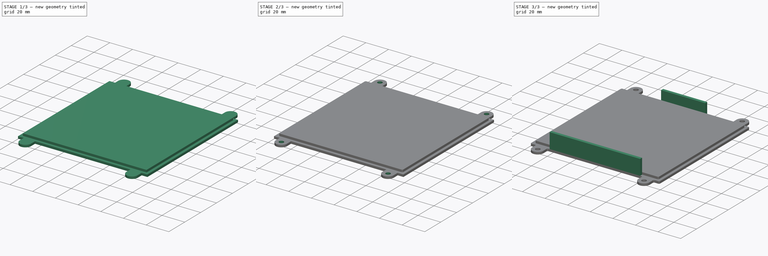
[diagram: build sequence overview — one tinted view per stage of 3, left to right]
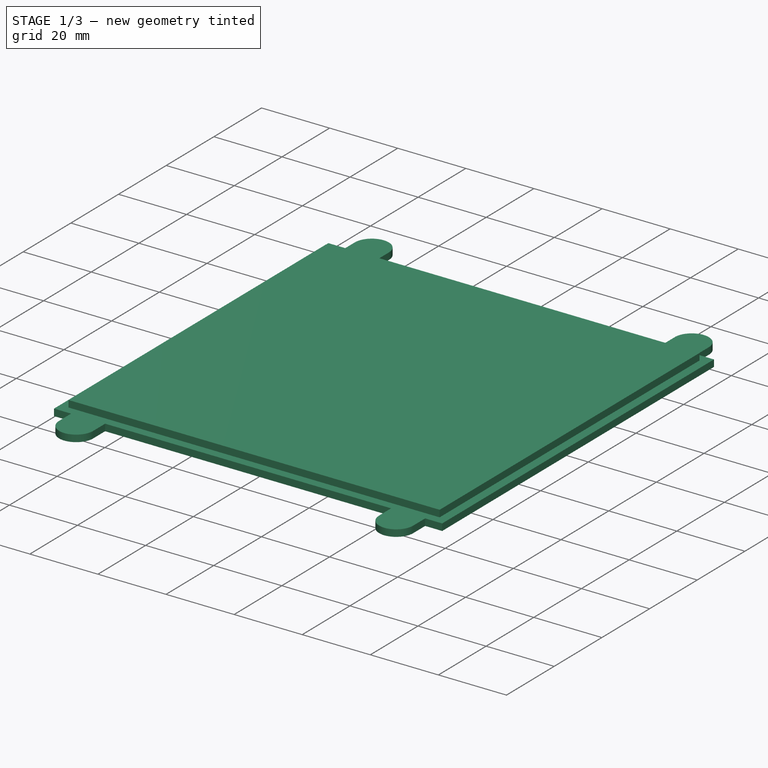
[diagram: stage 1 of 3 — iso view after this stage's code; geometry added in this stage tinted green]
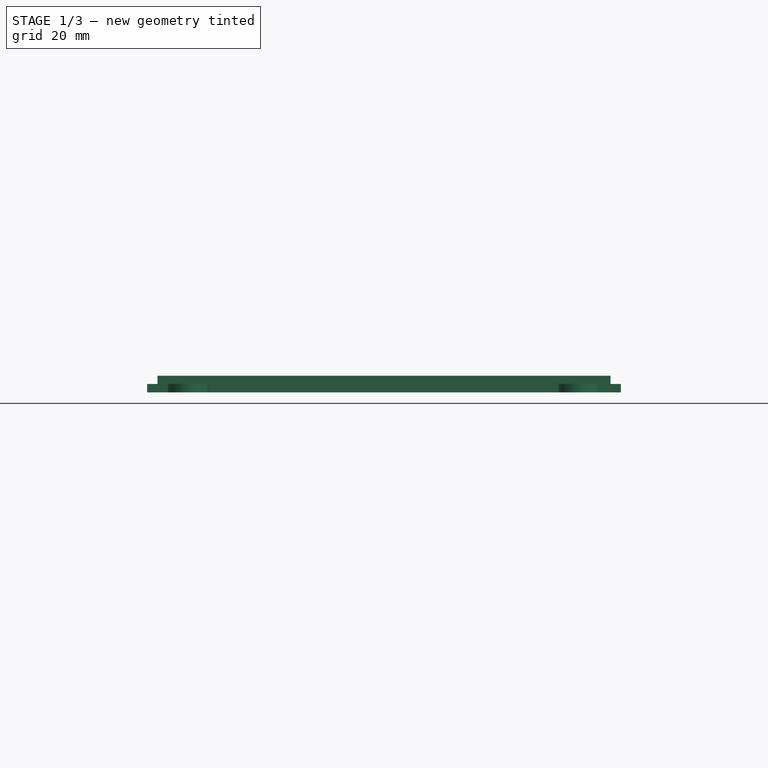
[diagram: stage 1 of 3 — front view after this stage's code; geometry added in this stage tinted green]
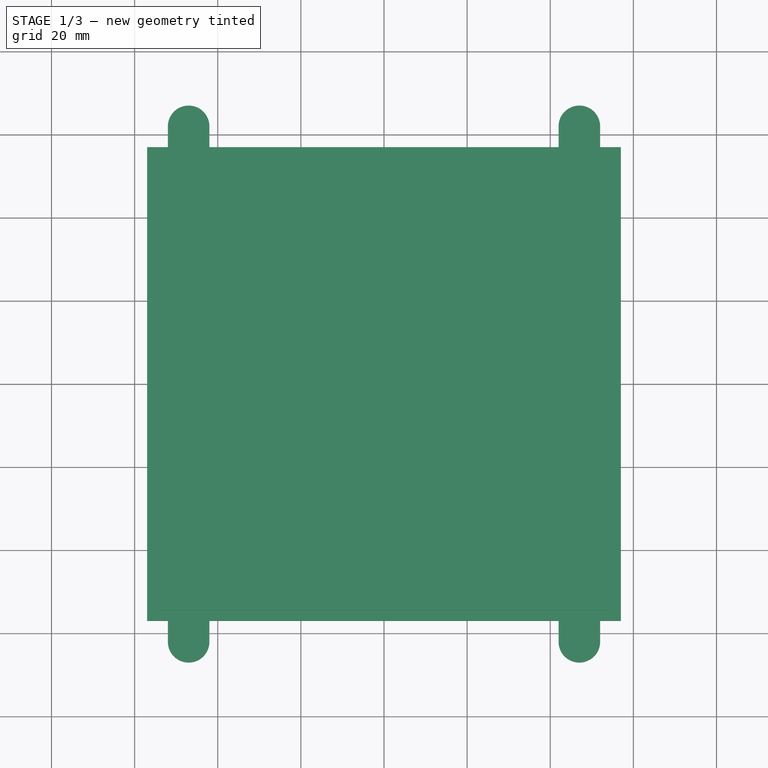
[diagram: stage 1 of 3 — top view after this stage's code; geometry added in this stage tinted green]
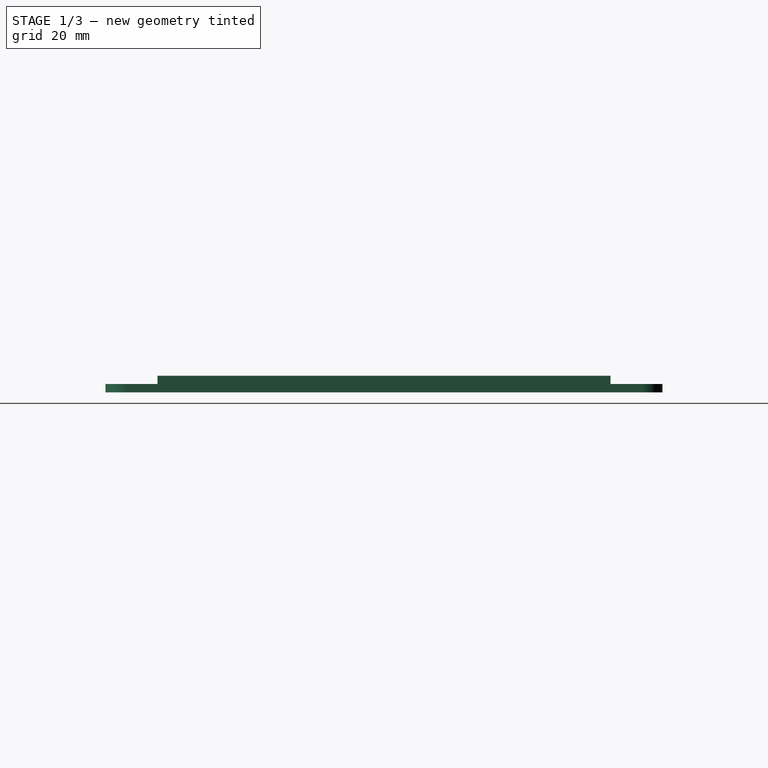
[diagram: stage 1 of 3 — right view after this stage's code; geometry added in this stage tinted green]
FCSTD DOCUMENT  (FreeCAD 1.0R39104 (Git))
Label: Case_2.1
License: All rights reserved
LicenseURL: https://en.wikipedia.org/wiki/All_rights_reserved
objects: Sketcher::SketchObject×6, PartDesign::Pad×5, PartDesign::Fillet×2, Measure::MeasurePython×2, PartDesign::Hole×1, PartDesign::Body×1, App::Part×1
note: 37 computed .brp shape members not serialized (recipe doc carries the construction recipe); baked Part::Feature solids carry a one-line shape summary decoded from their .brp

FEATURE [Sketcher::SketchObject] Sketch
  ArcFitTolerance = 1e-06
  AttachmentSupport = -> [XY_Plane001]
  FullyConstrained = true
  MakeInternals = false
  MapMode = 5
  sketch-geometry (5):
    g0: LineSegment StartX=-57 StartY=57 StartZ=0 EndX=-57 EndY=-57 EndZ=0
    g1: LineSegment StartX=-57 StartY=-57 StartZ=0 EndX=57 EndY=-57 EndZ=0
    g2: LineSegment StartX=57 StartY=-57 StartZ=0 EndX=57 EndY=57 EndZ=0
    g3: LineSegment StartX=57 StartY=57 StartZ=0 EndX=-57 EndY=57 EndZ=0
    g4: GeomPoint [constr] X=0 Y=0 Z=0
  constraints (12):
    c: Coincident(g0,g1)
    c: Coincident(g1,g2)
    c: Coincident(g2,g3)
    c: Coincident(g3,g0)
    c: Vertical(g0)
    c: Vertical(g2)
    c: Horizontal(g1)
    c: Horizontal(g3)
    c: Symmetric(g2,g0,g4)
    c: Coincident(g4,g-1)
    c: DistanceX(g3,g3) = 114
    c: DistanceY(g2,g2) = 114
FEATURE [PartDesign::Pad] Pad
  Direction = (0,0,1)
  Length = 2
  Length2 = 10
  Profile = -> Sketch
  ReferenceAxis = -> Sketch [N_Axis]
  Refine = true
  Suppressed = false
  Type = 0
FEATURE [Sketcher::SketchObject] Sketch001
  ArcFitTolerance = 1e-06
  AttachmentSupport = -> [Pad]
  ExternalGeometry = -> [Pad]
  FullyConstrained = true
  MakeInternals = false
  MapMode = 5
  Placement = pos=(0,0,2) rot=(0,0,1;0rad)
  sketch-geometry (5):
    g0: LineSegment StartX=-54.5 StartY=54.5 StartZ=0 EndX=-54.5 EndY=-54.5 EndZ=0
    g1: LineSegment StartX=-54.5 StartY=-54.5 StartZ=0 EndX=54.5 EndY=-54.5 EndZ=0
    g2: LineSegment StartX=54.5 StartY=-54.5 StartZ=0 EndX=54.5 EndY=54.5 EndZ=0
    g3: LineSegment StartX=54.5 StartY=54.5 StartZ=0 EndX=-54.5 EndY=54.5 EndZ=0
    g4: GeomPoint [constr] X=0 Y=0 Z=0
  constraints (12):
    c: Coincident(g0,g1)
    c: Coincident(g1,g2)
    c: Coincident(g2,g3)
    c: Coincident(g3,g0)
    c: Vertical(g0)
    c: Vertical(g2)
    c: Horizontal(g1)
    c: Horizontal(g3)
    c: Symmetric(g2,g0,g4)
    c: Coincident(g4,g-1)
    c: DistanceX(g1,g1) = 109
    c: DistanceY(g2,g2) = 109
FEATURE [PartDesign::Pad] Pad001
  BaseFeature = -> Pad
  Direction = (0,0,1)
  Length = 2
  Length2 = 10
  Profile = -> Sketch001
  ReferenceAxis = -> Sketch001 [N_Axis]
  Refine = true
  Suppressed = false
  Type = 0
FEATURE [Sketcher::SketchObject] Sketch002
  ArcFitTolerance = 1e-06
  AttachmentSupport = -> [Pad001]
  ExternalGeometry = -> [Pad001]
  FullyConstrained = false
  MakeInternals = false
  MapMode = 5
  Placement = pos=(0,0,2) rot=(0,0,1;0rad)
  sketch-geometry (16):
    g0: ArcOfCircle CenterX=47 CenterY=62 CenterZ=0 NormalX=0 NormalY=0 NormalZ=1 AngleXU=0 Radius=5 StartAngle=0 EndAngle=3.14159
    g1: LineSegment StartX=42 StartY=62 StartZ=0 EndX=42 EndY=57 EndZ=0
    g2: LineSegment StartX=42 StartY=57 StartZ=0 EndX=52 EndY=57 EndZ=0
    g3: LineSegment StartX=52 StartY=57 StartZ=0 EndX=52 EndY=62 EndZ=0
    g4: ArcOfCircle CenterX=-47 CenterY=62 CenterZ=0 NormalX=0 NormalY=0 NormalZ=1 AngleXU=0 Radius=5 StartAngle=0 EndAngle=3.14159
    g5: LineSegment StartX=-42 StartY=62 StartZ=0 EndX=-42 EndY=57 EndZ=0
    g6: LineSegment StartX=-42 StartY=57 StartZ=0 EndX=-52 EndY=57 EndZ=0
    g7: LineSegment StartX=-52 StartY=57 StartZ=0 EndX=-52 EndY=62 EndZ=0
    g8: ArcOfCircle CenterX=47 CenterY=-62 CenterZ=0 NormalX=0 NormalY=0 NormalZ=1 AngleXU=0 Radius=5 StartAngle=3.14159 EndAngle=6.28319
    g9: LineSegment StartX=42 StartY=-62 StartZ=0 EndX=42 EndY=-57 EndZ=0
    g10: LineSegment StartX=42 StartY=-57 StartZ=0 EndX=52 EndY=-57 EndZ=0
    g11: LineSegment StartX=52 StartY=-57 StartZ=0 EndX=52 EndY=-62 EndZ=0
    g12: ArcOfCircle CenterX=-47 CenterY=-62 CenterZ=0 NormalX=0 NormalY=0 NormalZ=1 AngleXU=0 Radius=5 StartAngle=3.14159 EndAngle=6.28319
    g13: LineSegment StartX=-42 StartY=-62 StartZ=0 EndX=-42 EndY=-57 EndZ=0
    g14: LineSegment StartX=-42 StartY=-57 StartZ=0 EndX=-52 EndY=-57 EndZ=0
    g15: LineSegment StartX=-52 StartY=-57 StartZ=0 EndX=-52 EndY=-62 EndZ=0
  constraints (35):
    c: Tangent(g0,g-3)
    c: DistanceX(g0,g-3) = 10
    c: Diameter(g0) = 10
    c: PointOnObject(g1,g-3)
    c: Vertical(g1)
    c: Coincident(g1,g2)
    c: Equal(g1,g3)
    c: Perpendicular(g2,g1)
    c: Perpendicular(g2,g3)
    c: Tangent(g0,g1) = -1.5708
    c: Tangent(g0,g3) = -1.5708
    c: Diameter(g4) = 10
    c: Vertical(g5)
    c: Coincident(g5,g6)
    c: Equal(g5,g7)
    c: Perpendicular(g6,g5)
    c: Perpendicular(g6,g7)
    c: Tangent(g4,g5) = 1.5708
    c: Tangent(g4,g7) = 1.5708
    c: Diameter(g8) = 10
    c: Vertical(g9)
    c: Coincident(g9,g10)
    c: Equal(g9,g11)
    c: Perpendicular(g10,g9)
    c: Perpendicular(g10,g11)
    c: Tangent(g8,g9) = 1.5708
    c: Tangent(g8,g11) = 1.5708
    c: Diameter(g12) = 10
    c: Vertical(g13)
    c: Coincident(g13,g14)
    c: Equal(g13,g15)
    c: Perpendicular(g14,g13)
    c: Perpendicular(g14,g15)
    c: Tangent(g12,g13) = -1.5708
    c: Tangent(g12,g15) = -1.5708
FEATURE [PartDesign::Pad] Pad002
  BaseFeature = -> Pad001
  Direction = (0,0,1)
  Length = 10
  Length2 = 10
  Profile = -> Sketch002
  ReferenceAxis = -> Sketch002 [N_Axis]
  Refine = true
  Reversed = true
  Suppressed = false
  Type = 3
  UpToFace = -> Pad001 [Face4]
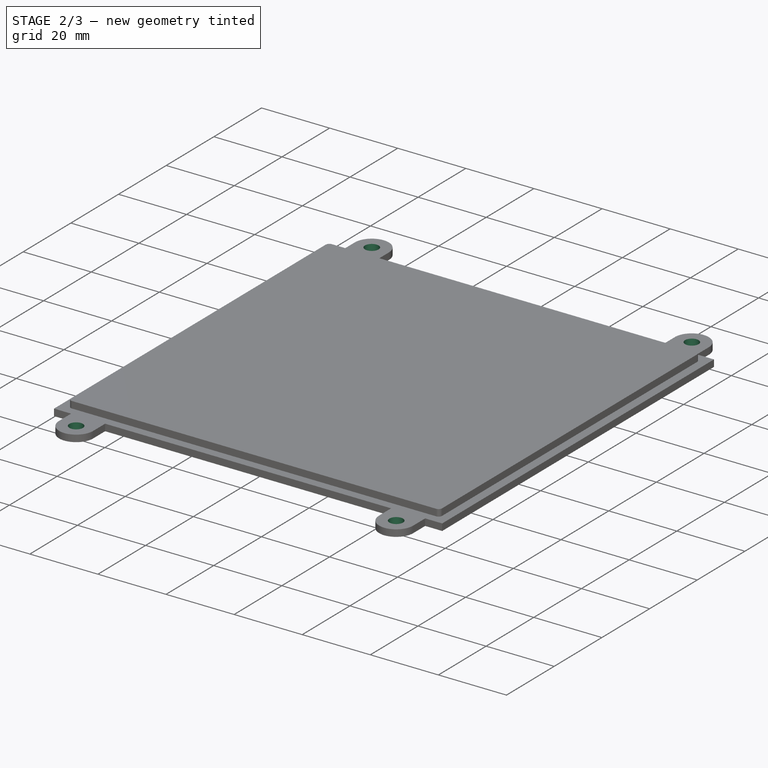
[diagram: stage 2 of 3 — iso view after this stage's code; geometry added in this stage tinted green]
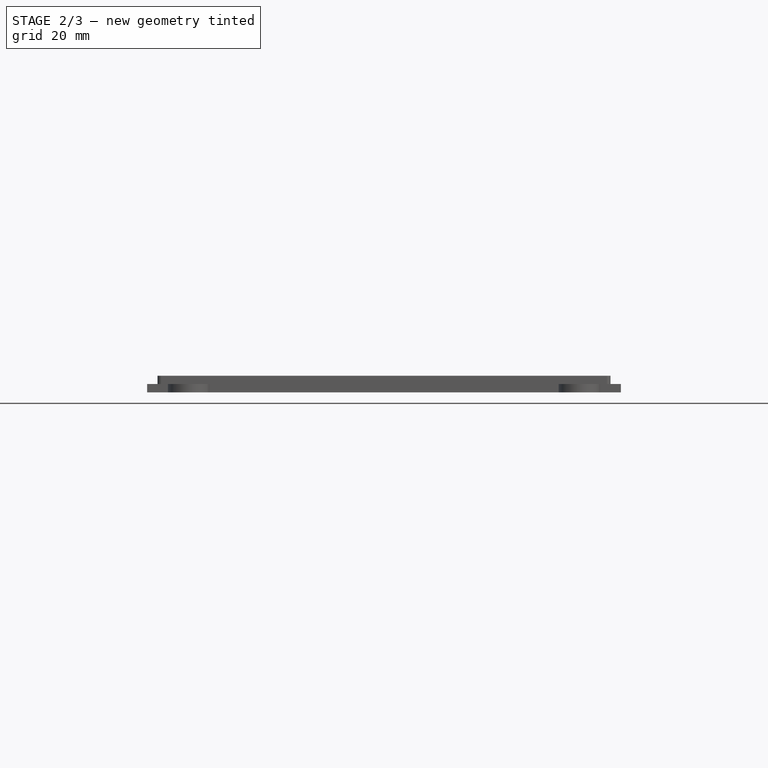
[diagram: stage 2 of 3 — front view after this stage's code; geometry added in this stage tinted green]
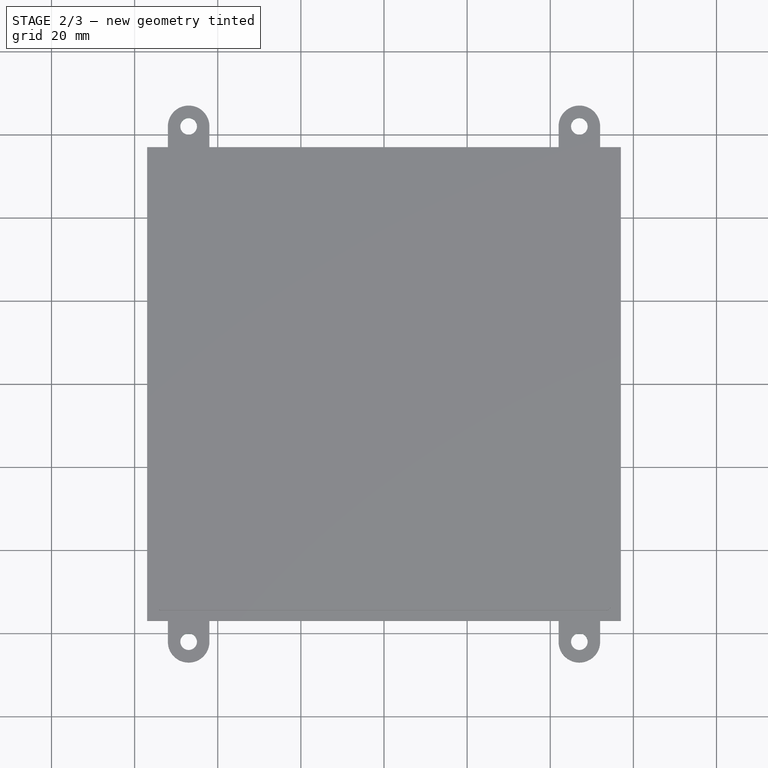
[diagram: stage 2 of 3 — top view after this stage's code; geometry added in this stage tinted green]
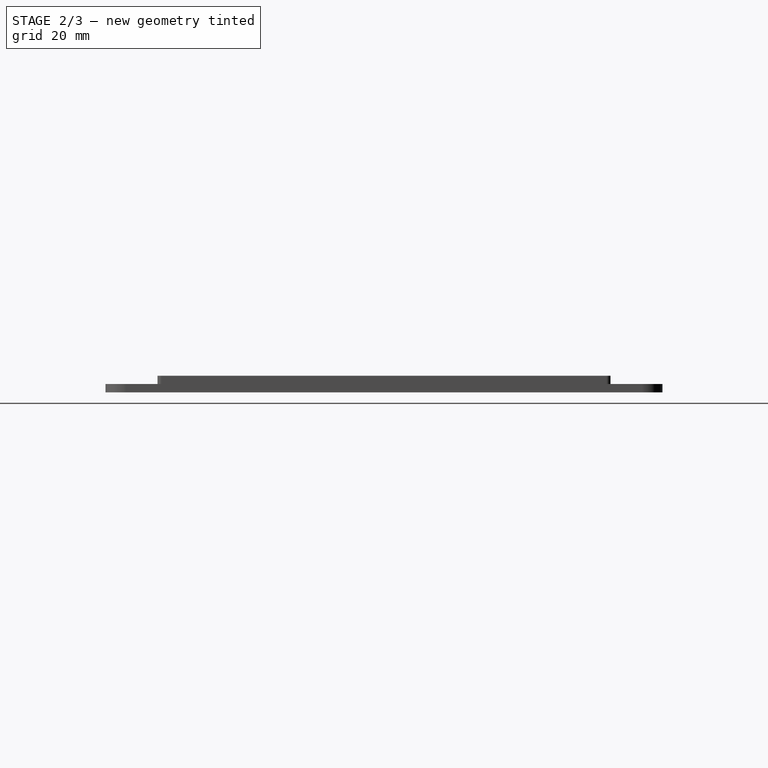
[diagram: stage 2 of 3 — right view after this stage's code; geometry added in this stage tinted green]
FEATURE [Sketcher::SketchObject] Sketch003
  ArcFitTolerance = 1e-06
  AttachmentSupport = -> [Pad002]
  ExternalGeometry = -> [Pad002]
  FullyConstrained = false
  MakeInternals = false
  MapMode = 5
  Placement = pos=(0,0,0) rot=(1,0,0;3.14159rad)
  sketch-geometry (4):
    g0: Circle CenterX=-47 CenterY=62 CenterZ=0 NormalX=0 NormalY=0 NormalZ=1 AngleXU=0 Radius=3.47509
    g1: Circle CenterX=47 CenterY=62 CenterZ=0 NormalX=0 NormalY=0 NormalZ=1 AngleXU=0 Radius=2.88087
    g2: Circle CenterX=47 CenterY=-62 CenterZ=0 NormalX=0 NormalY=0 NormalZ=1 AngleXU=0 Radius=1.99185
    g3: Circle CenterX=-47 CenterY=-62 CenterZ=0 NormalX=0 NormalY=0 NormalZ=1 AngleXU=0 Radius=2.15273
  constraints (4):
    c: Coincident(g0,g-5)
    c: Coincident(g1,g-6)
    c: Coincident(g2,g-4)
    c: Coincident(g3,g-3)
FEATURE [PartDesign::Hole] Hole
  BaseFeature = -> Pad002
  CustomThreadClearance = 0
  Depth = 355.362
  DepthType = 1
  Diameter = 4
  DrillForDepth = false
  DrillPoint = 1
  DrillPointAngle = 118
  HoleCutCountersinkAngle = 90
  HoleCutCustomValues = false
  HoleCutDepth = 0
  HoleCutDiameter = 6.1
  HoleCutType = 0
  ModelThread = false
  Profile = -> Sketch003
  Refine = true
  Suppressed = false
  Tapered = false
  TaperedAngle = 90
  ThreadClass = 0
  ThreadDepth = 355.362
  ThreadDepthType = 0
  ThreadDirection = 0
  ThreadFit = 0
  ThreadSize = 0
  ThreadType = 0
  Threaded = false
  UseCustomThreadClearance = false
FEATURE [PartDesign::Fillet] Fillet
  Base = -> Hole [Edge80,Edge77,Edge78,Edge82]
  BaseFeature = -> Hole
  Radius = 1
  Refine = true
  SupportTransform = false
  Suppressed = false
  UseAllEdges = false
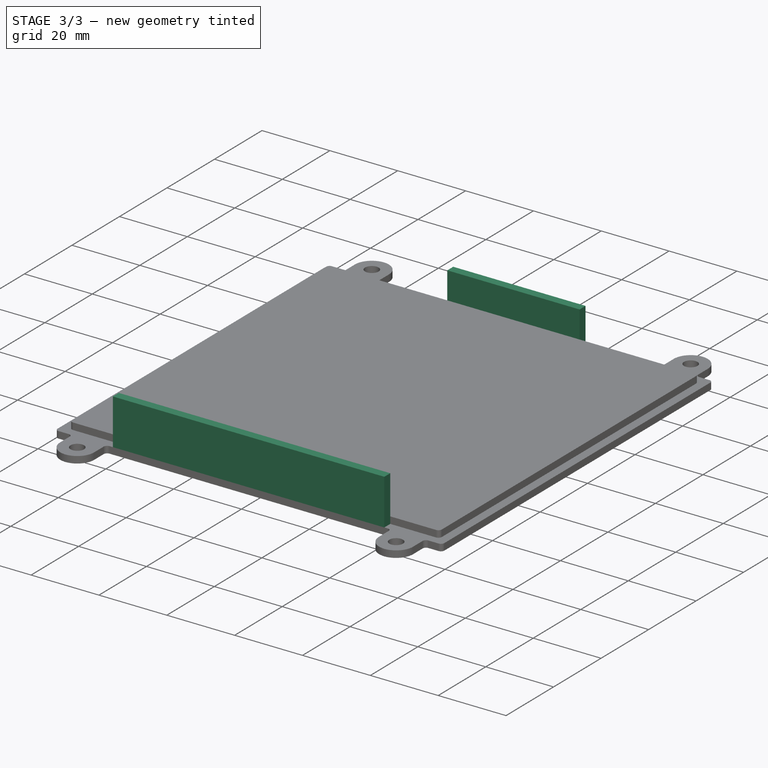
[diagram: stage 3 of 3 — iso view after this stage's code; geometry added in this stage tinted green]
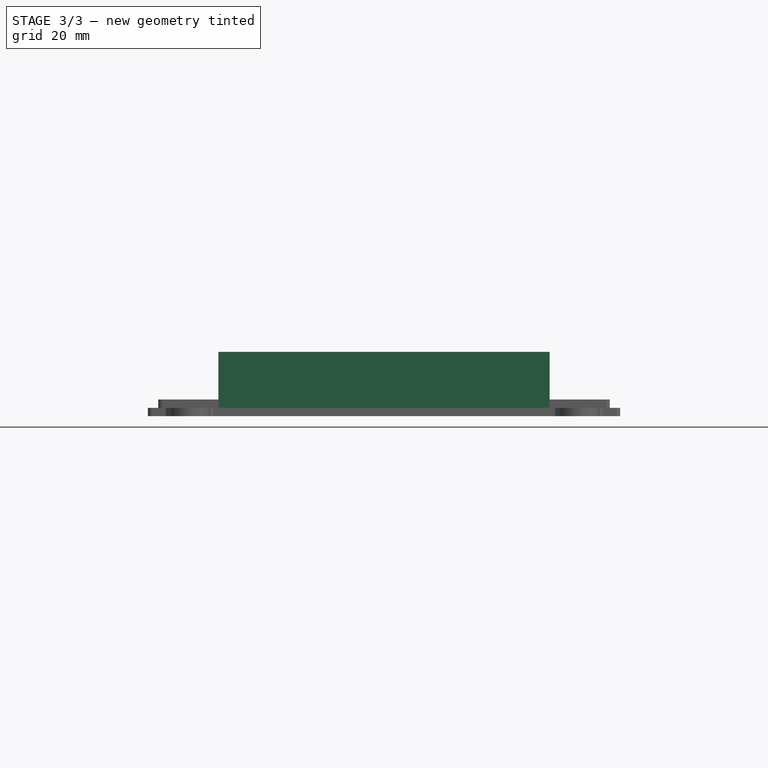
[diagram: stage 3 of 3 — front view after this stage's code; geometry added in this stage tinted green]
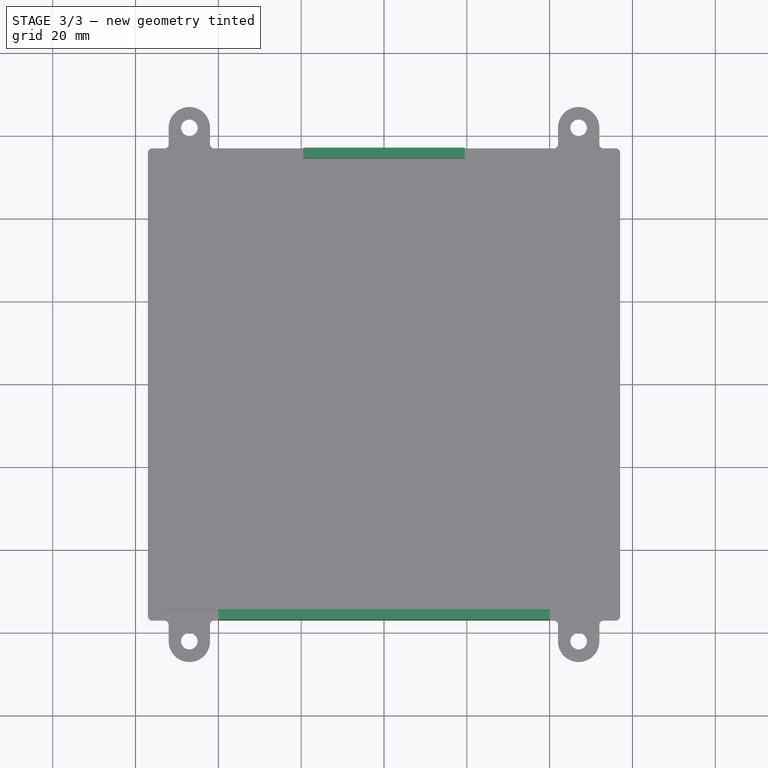
[diagram: stage 3 of 3 — top view after this stage's code; geometry added in this stage tinted green]
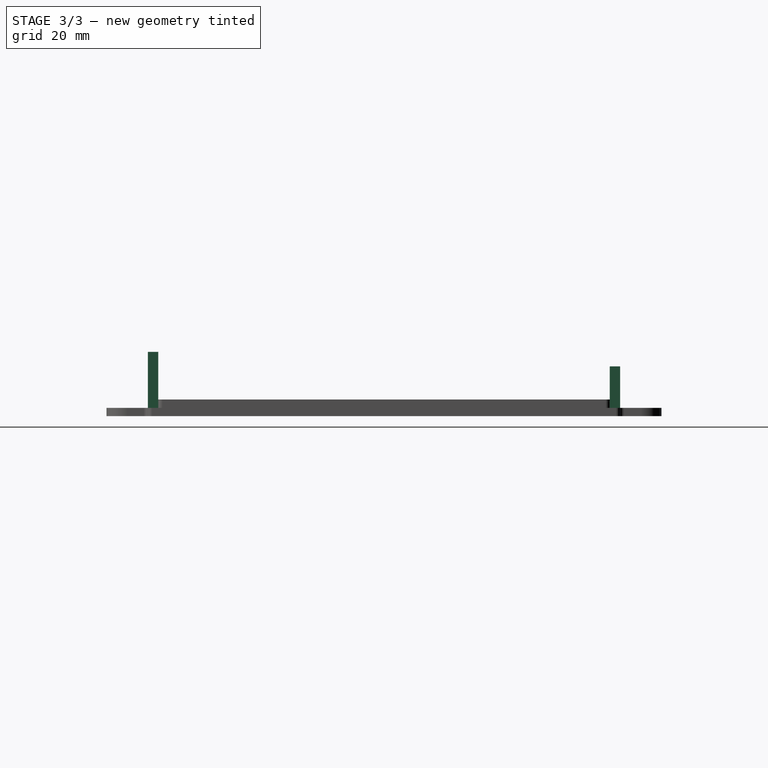
[diagram: stage 3 of 3 — right view after this stage's code; geometry added in this stage tinted green]
FEATURE [Sketcher::SketchObject] Sketch004
  ArcFitTolerance = 1e-06
  AttachmentSupport = -> [Fillet]
  ExternalGeometry = -> [Fillet]
  FullyConstrained = true
  MakeInternals = false
  MapMode = 5
  Placement = pos=(0,0,0) rot=(1,0,0;3.14159rad)
  sketch-geometry (4):
    g0: LineSegment StartX=-40 StartY=57 StartZ=0 EndX=-40 EndY=54.5 EndZ=0
    g1: LineSegment StartX=-40 StartY=54.5 StartZ=0 EndX=40 EndY=54.5 EndZ=0
    g2: LineSegment StartX=40 StartY=54.5 StartZ=0 EndX=40 EndY=57 EndZ=0
    g3: LineSegment StartX=40 StartY=57 StartZ=0 EndX=-40 EndY=57 EndZ=0
  constraints (12):
    c: Coincident(g0,g1)
    c: Coincident(g1,g2)
    c: Coincident(g2,g3)
    c: Coincident(g3,g0)
    c: Vertical(g0)
    c: Vertical(g2)
    c: Horizontal(g1)
    c: Horizontal(g3)
    c: PointOnObject(g0,g-3)
    c: DistanceY(g0,g0) = 2.5
    c: DistanceX(g3,g3) = 80
    c: Distance(g-2,g2) = 40
FEATURE [PartDesign::Pad] Pad003
  BaseFeature = -> Fillet
  Direction = (0,0,-1)
  Length = 15.5
  Length2 = 10
  Profile = -> Sketch004
  ReferenceAxis = -> Sketch004 [N_Axis]
  Refine = true
  Reversed = true
  Suppressed = false
  Type = 0
FEATURE [Sketcher::SketchObject] Sketch005
  ArcFitTolerance = 1e-06
  AttachmentSupport = -> [Pad003]
  ExternalGeometry = -> [Pad003]
  FullyConstrained = true
  MakeInternals = false
  MapMode = 5
  Placement = pos=(0,0,2) rot=(0,0,1;0rad)
  sketch-geometry (4):
    g0: LineSegment StartX=19.5 StartY=57 StartZ=0 EndX=-19.5 EndY=57 EndZ=0
    g1: LineSegment StartX=-19.5 StartY=57 StartZ=0 EndX=-19.5 EndY=54.5 EndZ=0
    g2: LineSegment StartX=-19.5 StartY=54.5 StartZ=0 EndX=19.5 EndY=54.5 EndZ=0
    g3: LineSegment StartX=19.5 StartY=54.5 StartZ=0 EndX=19.5 EndY=57 EndZ=0
  constraints (12):
    c: Coincident(g0,g1)
    c: Coincident(g1,g2)
    c: Coincident(g2,g3)
    c: Coincident(g3,g0)
    c: Horizontal(g0)
    c: Horizontal(g2)
    c: Vertical(g1)
    c: Vertical(g3)
    c: PointOnObject(g0,g-4)
    c: PointOnObject(g1,g-3)
    c: DistanceX(g0,g0) = 39
    c: Distance(g3,g-2) = 19.5
FEATURE [PartDesign::Pad] Pad004
  BaseFeature = -> Pad003
  Direction = (0,0,1)
  Length = 10
  Length2 = 10
  Profile = -> Sketch005
  ReferenceAxis = -> Sketch005 [N_Axis]
  Refine = true
  Suppressed = false
  Type = 0
FEATURE [PartDesign::Fillet] Fillet001
  Base = -> Pad004 [Edge122,Edge45,Edge44,Edge123,Edge121,Edge124,Edge36,Edge32,Edge42,Edge48,Edge109,Edge53]
  BaseFeature = -> Pad004
  Radius = 1
  Refine = true
  SupportTransform = false
  Suppressed = false
  UseAllEdges = false
FEATURE [PartDesign::Body] Body
  AllowCompound = false
  Group = -> [Sketch,Pad,Sketch001,Pad001,Sketch002,Pad002,Sketch003,Hole,Fillet,Sketch004,Pad003,Sketch005,Pad004,Fillet001]
  Origin = -> Origin001
  Tip = -> Fillet001
FEATURE [App::Part] Part
  Group = -> [Body]
  Origin = -> Origin
FEATURE [Measure::MeasurePython] Center_of_Mass  label="Center_of_Mass: COM
X: 1.23 mm
Y: -55.75 mm
Z: 0.00 mm"  # WARN: FeaturePython — macro-defined, semantics opaque (R4)
  Element = -> Part [Body.Sketch004.]
  Placement = pos=(-2.14e-14,-55.75,0) rot=(0,0,1;0rad)
  Result = (-2.14e-14,-55.75,0)
FEATURE [Measure::MeasurePython] Center_of_Mass001  label="Center_of_Mass001: COM
X: 6.98 mm
Y: 55.75 mm
Z: 4.00 mm"  # WARN: FeaturePython — macro-defined, semantics opaque (R4)
  Element = -> Part [Body.Sketch005.]
  Placement = pos=(0,55.75,2) rot=(0,0,1;0rad)
  Result = (0,55.75,2)
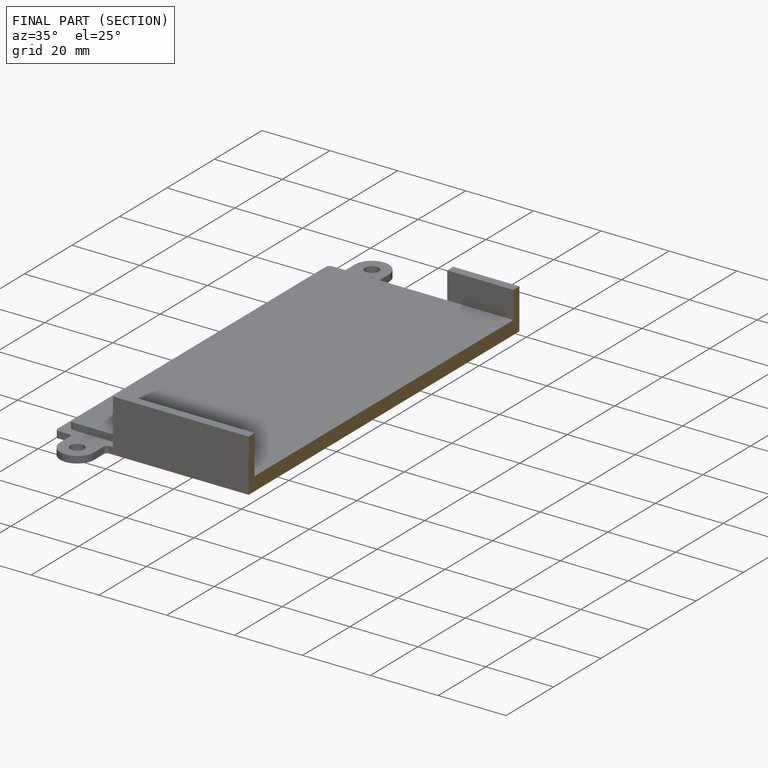
[diagram: finished part — half-section view (interior)]
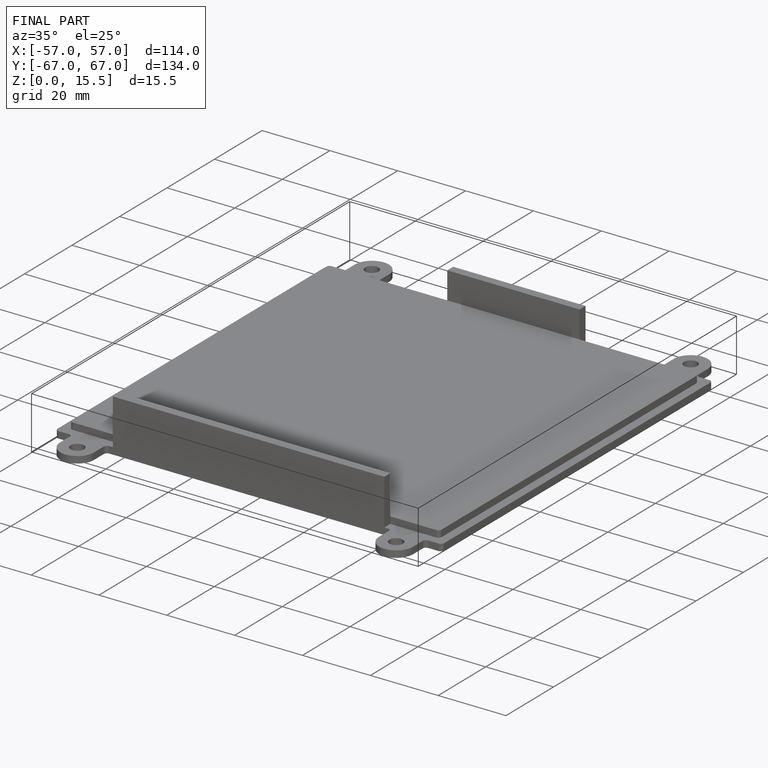
[diagram: finished part — iso view with bounding-box wireframe]
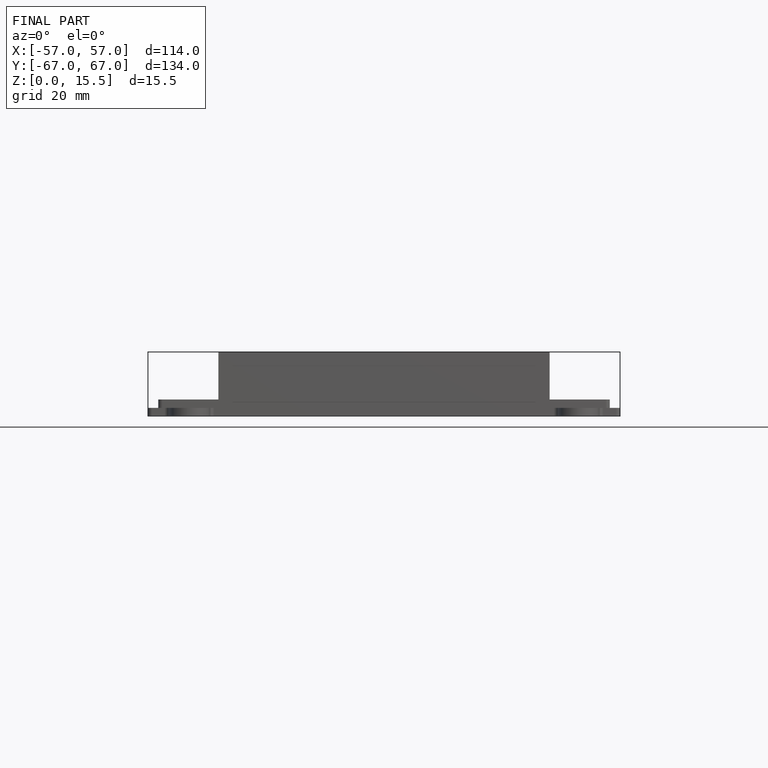
[diagram: finished part — front view with bounding-box wireframe]
